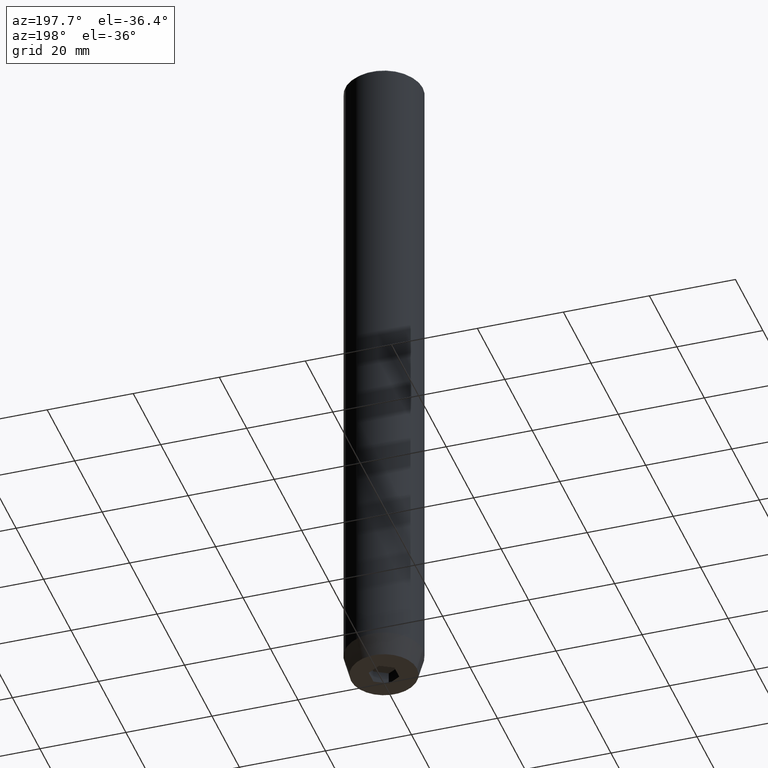
[diagram: clean part render]
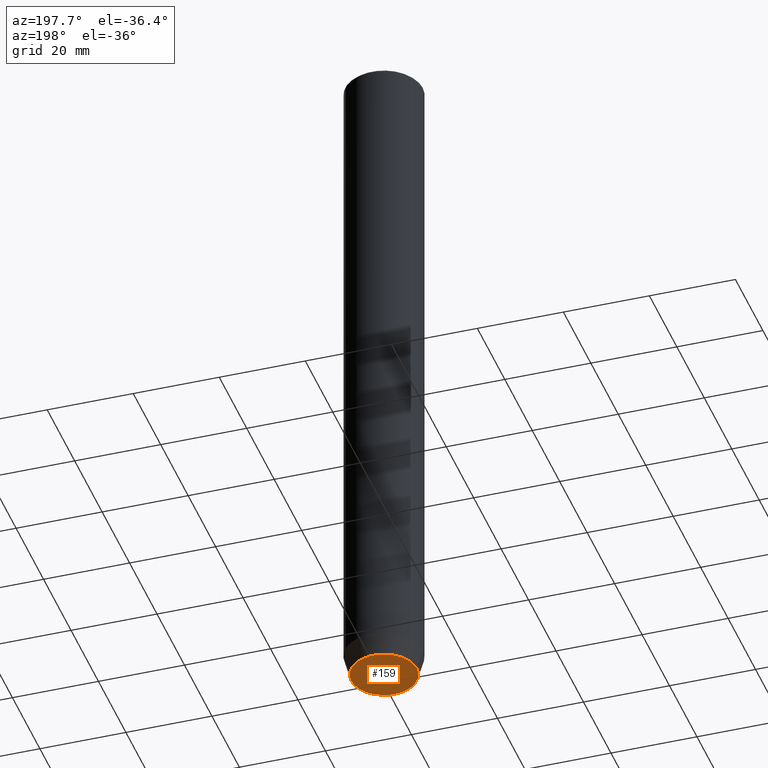
[diagram: same view with one face highlighted and labeled with its STEP entity id]
A machine part, auxiliary view. The second image highlights one B-rep face of the part: STEP entity #159.
In plain terms, the highlighted planar face has unit normal (0, 0, -1).
Its self-contained STEP definition (entity closure, byte-faithful):
#14 = EDGE_CURVE ( 'NONE', #401, #399, #453, .T. ) ;
#21 = DIRECTION ( 'NONE',  ( -0.8660254037844385966, 0.5000000000000001110, 0.000000000000000000 ) ) ;
#22 = VECTOR ( 'NONE', #423, 1000.000000000000000 ) ;
#23 = ORIENTED_EDGE ( 'NONE', *, *, #504, .F. ) ;
#49 = CARTESIAN_POINT ( 'NONE',  ( -7.660254037844373087, 1.020146339021393680E-15, -160.0000000000000000 ) ) ;
#51 = AXIS2_PLACEMENT_3D ( 'NONE', #55, #459, #545 ) ;
#55 = CARTESIAN_POINT ( 'NONE',  ( 0.000000000000000000, 0.000000000000000000, -160.0000000000000000 ) ) ;
#60 = LINE ( 'NONE', #384, #179 ) ;
#65 = CARTESIAN_POINT ( 'NONE',  ( 0.000000000000000000, 7.660254037844373087, -160.0000000000000000 ) ) ;
#71 = VERTEX_POINT ( 'NONE', #291 ) ;
#82 = LINE ( 'NONE', #268, #89 ) ;
#88 = LINE ( 'NONE', #468, #338 ) ;
#89 = VECTOR ( 'NONE', #408, 1000.000000000000000 ) ;
#110 = VERTEX_POINT ( 'NONE', #543 ) ;
#111 = CARTESIAN_POINT ( 'NONE',  ( -1.499999999999999556, 2.598076211353316012, -160.0000000000000000 ) ) ;
#113 = ORIENTED_EDGE ( 'NONE', *, *, #527, .F. ) ;
#125 = VERTEX_POINT ( 'NONE', #321 ) ;
#129 = CARTESIAN_POINT ( 'NONE',  ( 3.000000000000000000, 1.732050807568876527, -160.0000000000000000 ) ) ;
#130 = VERTEX_POINT ( 'NONE', #144 ) ;
#133 = CARTESIAN_POINT ( 'NONE',  ( 3.000000000000000000, 0.000000000000000000, -160.0000000000000000 ) ) ;
#144 = CARTESIAN_POINT ( 'NONE',  ( -3.000000000000000000, -1.732050807568877859, -160.0000000000000000 ) ) ;
#154 = ORIENTED_EDGE ( 'NONE', *, *, #266, .F. ) ;
#158 = ORIENTED_EDGE ( 'NONE', *, *, #14, .F. ) ;
#159 = ADVANCED_FACE ( 'NONE', ( #286, #482 ), #523, .T. ) ;
#169 = EDGE_CURVE ( 'NONE', #261, #401, #211, .T. ) ;
#179 = VECTOR ( 'NONE', #21, 1000.000000000000000 ) ;
#186 = EDGE_LOOP ( 'NONE', ( #23, #263 ) ) ;
#211 = LINE ( 'NONE', #111, #467 ) ;
#229 = CARTESIAN_POINT ( 'NONE',  ( 1.500000000000000222, 2.598076211353315568, -160.0000000000000000 ) ) ;
#246 = CARTESIAN_POINT ( 'NONE',  ( -3.000000000000000888, 1.732050807568876527, -160.0000000000000000 ) ) ;
#247 = DIRECTION ( 'NONE',  ( 0.000000000000000000, 0.000000000000000000, -1.000000000000000000 ) ) ;
#255 = ORIENTED_EDGE ( 'NONE', *, *, #390, .F. ) ;
#261 = VERTEX_POINT ( 'NONE', #246 ) ;
#263 = ORIENTED_EDGE ( 'NONE', *, *, #289, .F. ) ;
#266 = EDGE_CURVE ( 'NONE', #110, #130, #60, .T. ) ;
#268 = CARTESIAN_POINT ( 'NONE',  ( -3.000000000000000444, -7.511572993685800087E-16, -160.0000000000000000 ) ) ;
#274 = VECTOR ( 'NONE', #446, 1000.000000000000000 ) ;
#286 = FACE_BOUND ( 'NONE', #569, .T. ) ;
#289 = EDGE_CURVE ( 'NONE', #517, #125, #293, .T. ) ;
#291 = CARTESIAN_POINT ( 'NONE',  ( 3.000000000000000000, -1.732050807568876527, -160.0000000000000000 ) ) ;
#293 = CIRCLE ( 'NONE', #447, 7.660254037844373087 ) ;
#300 = ORIENTED_EDGE ( 'NONE', *, *, #393, .F. ) ;
#302 = DIRECTION ( 'NONE',  ( 1.000000000000000000, 0.000000000000000000, 0.000000000000000000 ) ) ;
#321 = CARTESIAN_POINT ( 'NONE',  ( 7.660254037844373087, 0.000000000000000000, -160.0000000000000000 ) ) ;
#336 = CIRCLE ( 'NONE', #51, 7.660254037844373087 ) ;
#337 = CARTESIAN_POINT ( 'NONE',  ( 0.000000000000000000, 0.000000000000000000, -160.0000000000000000 ) ) ;
#338 = VECTOR ( 'NONE', #372, 1000.000000000000000 ) ;
#357 = ORIENTED_EDGE ( 'NONE', *, *, #169, .F. ) ;
#372 = DIRECTION ( 'NONE',  ( -0.8660254037844385966, -0.5000000000000001110, 0.000000000000000000 ) ) ;
#384 = CARTESIAN_POINT ( 'NONE',  ( -1.500000000000000666, -2.598076211353316456, -160.0000000000000000 ) ) ;
#390 = EDGE_CURVE ( 'NONE', #130, #261, #82, .T. ) ;
#393 = EDGE_CURVE ( 'NONE', #399, #71, #452, .T. ) ;
#399 = VERTEX_POINT ( 'NONE', #129 ) ;
#401 = VERTEX_POINT ( 'NONE', #493 ) ;
#408 = DIRECTION ( 'NONE',  ( -2.503857664561932376E-16, 1.000000000000000000, 0.000000000000000000 ) ) ;
#423 = DIRECTION ( 'NONE',  ( 0.8660254037844385966, -0.5000000000000001110, 0.000000000000000000 ) ) ;
#434 = AXIS2_PLACEMENT_3D ( 'NONE', #65, #247, #520 ) ;
#446 = DIRECTION ( 'NONE',  ( 0.000000000000000000, -1.000000000000000000, 0.000000000000000000 ) ) ;
#447 = AXIS2_PLACEMENT_3D ( 'NONE', #337, #561, #302 ) ;
#452 = LINE ( 'NONE', #133, #274 ) ;
#453 = LINE ( 'NONE', #229, #22 ) ;
#459 = DIRECTION ( 'NONE',  ( -0.000000000000000000, -0.000000000000000000, 1.000000000000000000 ) ) ;
#467 = VECTOR ( 'NONE', #516, 999.9999999999998863 ) ;
#468 = CARTESIAN_POINT ( 'NONE',  ( 1.500000000000000222, -2.598076211353315568, -160.0000000000000000 ) ) ;
#482 = FACE_OUTER_BOUND ( 'NONE', #186, .T. ) ;
#493 = CARTESIAN_POINT ( 'NONE',  ( 0.000000000000000000, 3.464101615137754386, -160.0000000000000000 ) ) ;
#504 = EDGE_CURVE ( 'NONE', #125, #517, #336, .T. ) ;
#516 = DIRECTION ( 'NONE',  ( 0.8660254037844387076, 0.4999999999999999445, 0.000000000000000000 ) ) ;
#517 = VERTEX_POINT ( 'NONE', #49 ) ;
#520 = DIRECTION ( 'NONE',  ( -1.000000000000000000, 0.000000000000000000, -0.000000000000000000 ) ) ;
#523 = PLANE ( 'NONE',  #434 ) ;
#527 = EDGE_CURVE ( 'NONE', #71, #110, #88, .T. ) ;
#543 = CARTESIAN_POINT ( 'NONE',  ( -2.168404344971008868E-16, -3.464101615137754830, -160.0000000000000000 ) ) ;
#545 = DIRECTION ( 'NONE',  ( 1.000000000000000000, 0.000000000000000000, 0.000000000000000000 ) ) ;
#561 = DIRECTION ( 'NONE',  ( -0.000000000000000000, -0.000000000000000000, 1.000000000000000000 ) ) ;
#569 = EDGE_LOOP ( 'NONE', ( #357, #255, #154, #113, #300, #158 ) ) ;